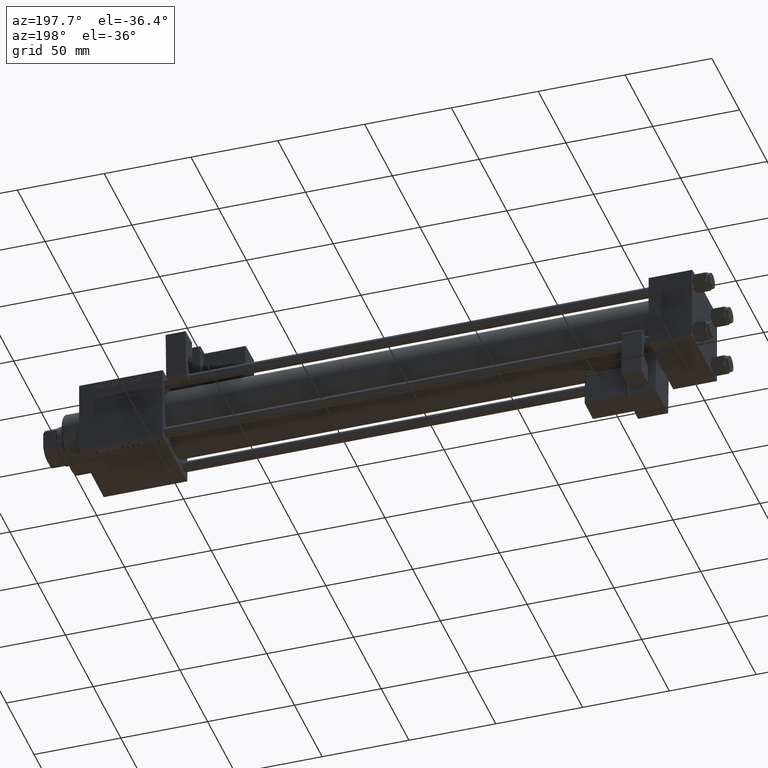
[diagram: clean part render]
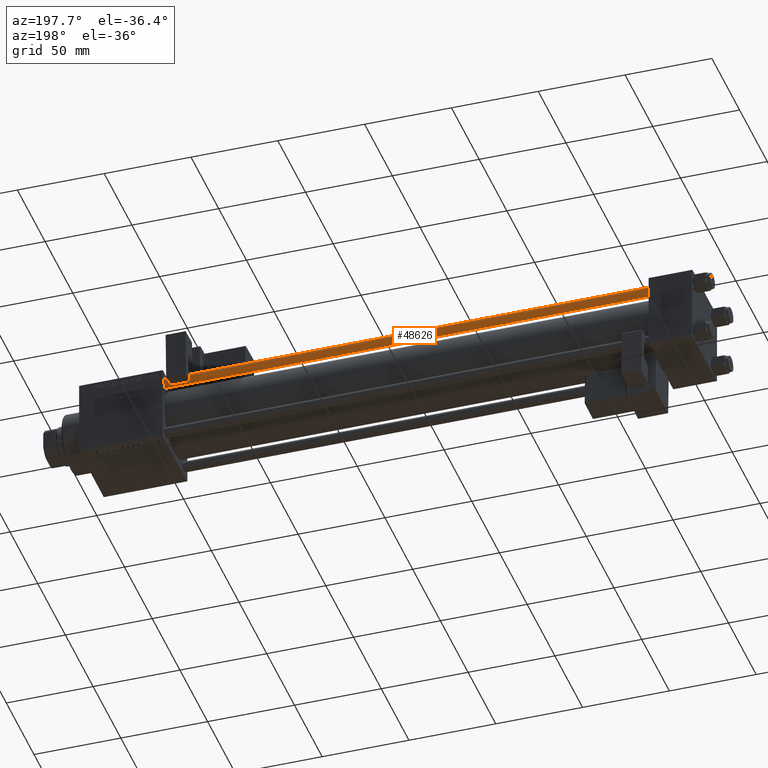
[diagram: same view with one face highlighted and labeled with its STEP entity id]
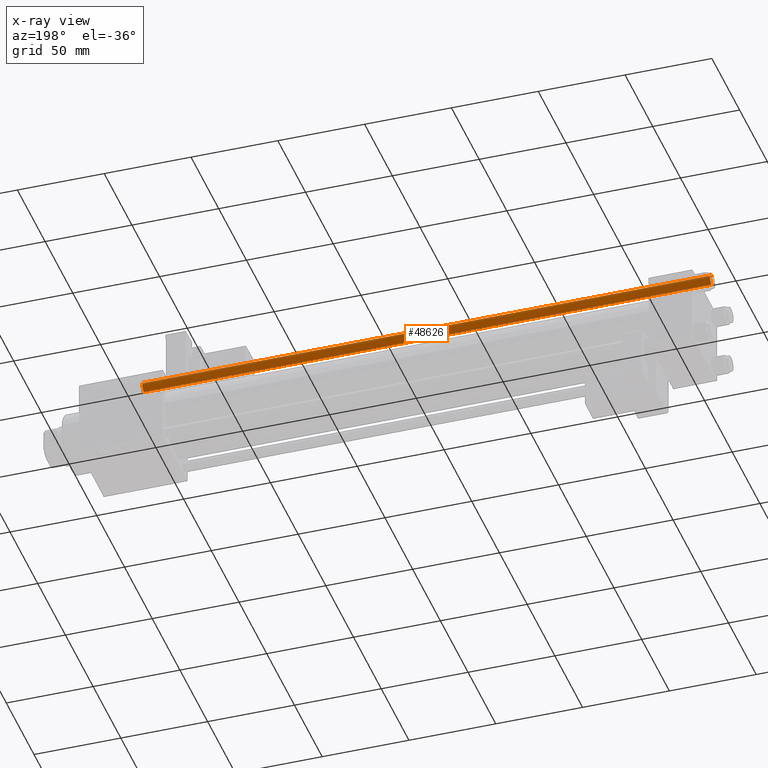
[diagram: x-ray of the same camera — body ghosted, the highlighted face saturated]
A machine part, auxiliary view. The second image highlights one B-rep face of the part: STEP entity #48626.
The next image is the same camera in x-ray: the body ghosted, the highlighted face saturated — about 0% of this face is hidden behind the body in this view.
In plain terms, the highlighted cylindrical surface (edge-blend (fillet) strip) has radius 3 mm, axis along (-1, 0, 0).
Its self-contained STEP definition (entity closure, byte-faithful):
#917 = DIRECTION ( 'NONE',  ( -0.000000000000000000, -0.000000000000000000, -1.000000000000000000 ) ) ;
#3912 = CIRCLE ( 'NONE', #22159, 3.000000000000000444 ) ;
#4402 = CARTESIAN_POINT ( 'NONE',  ( -3.000000000000000444, 0.000000000000000000, 0.5000000000000559552 ) ) ;
#5334 = EDGE_CURVE ( 'NONE', #37294, #16244, #46297, .T. ) ;
#6030 = CYLINDRICAL_SURFACE ( 'NONE', #17768, 3.000000000000000444 ) ;
#6543 = VERTEX_POINT ( 'NONE', #4402 ) ;
#6656 = CIRCLE ( 'NONE', #30028, 3.000000000000000444 ) ;
#12300 = VECTOR ( 'NONE', #917, 1000.000000000000000 ) ;
#13934 = FACE_OUTER_BOUND ( 'NONE', #28248, .T. ) ;
#16244 = VERTEX_POINT ( 'NONE', #31228 ) ;
#17768 = AXIS2_PLACEMENT_3D ( 'NONE', #22629, #30546, #47082 ) ;
#20096 = EDGE_CURVE ( 'NONE', #50629, #37294, #6656, .T. ) ;
#22159 = AXIS2_PLACEMENT_3D ( 'NONE', #23023, #35274, #36547 ) ;
#22629 = CARTESIAN_POINT ( 'NONE',  ( 0.000000000000000000, 0.000000000000000000, 328.0000000000000000 ) ) ;
#23023 = CARTESIAN_POINT ( 'NONE',  ( 0.000000000000000000, 0.000000000000000000, 0.5000000000000559552 ) ) ;
#23545 = CARTESIAN_POINT ( 'NONE',  ( 0.000000000000000000, 0.000000000000000000, 327.5000000000000000 ) ) ;
#28248 = EDGE_LOOP ( 'NONE', ( #47118, #46070, #42145, #38255 ) ) ;
#30028 = AXIS2_PLACEMENT_3D ( 'NONE', #23545, #32803, #36601 ) ;
#30546 = DIRECTION ( 'NONE',  ( -0.000000000000000000, -0.000000000000000000, -1.000000000000000000 ) ) ;
#31228 = CARTESIAN_POINT ( 'NONE',  ( 3.000000000000000444, 3.673940397442060361E-16, 0.5000000000000559552 ) ) ;
#32803 = DIRECTION ( 'NONE',  ( 0.000000000000000000, 0.000000000000000000, -1.000000000000000000 ) ) ;
#33133 = VECTOR ( 'NONE', #39604, 1000.000000000000000 ) ;
#35274 = DIRECTION ( 'NONE',  ( -0.000000000000000000, -0.000000000000000000, 1.000000000000000000 ) ) ;
#36547 = DIRECTION ( 'NONE',  ( 1.000000000000000000, 0.000000000000000000, 0.000000000000000000 ) ) ;
#36601 = DIRECTION ( 'NONE',  ( 1.000000000000000000, 0.000000000000000000, 0.000000000000000000 ) ) ;
#36857 = CARTESIAN_POINT ( 'NONE',  ( -3.000000000000000444, 0.000000000000000000, 327.5000000000000000 ) ) ;
#37294 = VERTEX_POINT ( 'NONE', #43097 ) ;
#38255 = ORIENTED_EDGE ( 'NONE', *, *, #41013, .F. ) ;
#38340 = CARTESIAN_POINT ( 'NONE',  ( -3.000000000000000444, 0.000000000000000000, 328.0000000000000000 ) ) ;
#39604 = DIRECTION ( 'NONE',  ( -0.000000000000000000, -0.000000000000000000, -1.000000000000000000 ) ) ;
#41013 = EDGE_CURVE ( 'NONE', #50629, #6543, #44195, .T. ) ;
#42145 = ORIENTED_EDGE ( 'NONE', *, *, #52653, .T. ) ;
#43097 = CARTESIAN_POINT ( 'NONE',  ( 3.000000000000000444, 3.673940397442060361E-16, 327.5000000000000000 ) ) ;
#44195 = LINE ( 'NONE', #38340, #33133 ) ;
#46070 = ORIENTED_EDGE ( 'NONE', *, *, #5334, .T. ) ;
#46297 = LINE ( 'NONE', #50129, #12300 ) ;
#47082 = DIRECTION ( 'NONE',  ( -1.000000000000000000, 0.000000000000000000, 0.000000000000000000 ) ) ;
#47118 = ORIENTED_EDGE ( 'NONE', *, *, #20096, .T. ) ;
#48626 = ADVANCED_FACE ( 'NONE', ( #13934 ), #6030, .T. ) ;
#50129 = CARTESIAN_POINT ( 'NONE',  ( 3.000000000000000444, 3.673940397442060361E-16, 328.0000000000000000 ) ) ;
#50629 = VERTEX_POINT ( 'NONE', #36857 ) ;
#52653 = EDGE_CURVE ( 'NONE', #16244, #6543, #3912, .T. ) ;